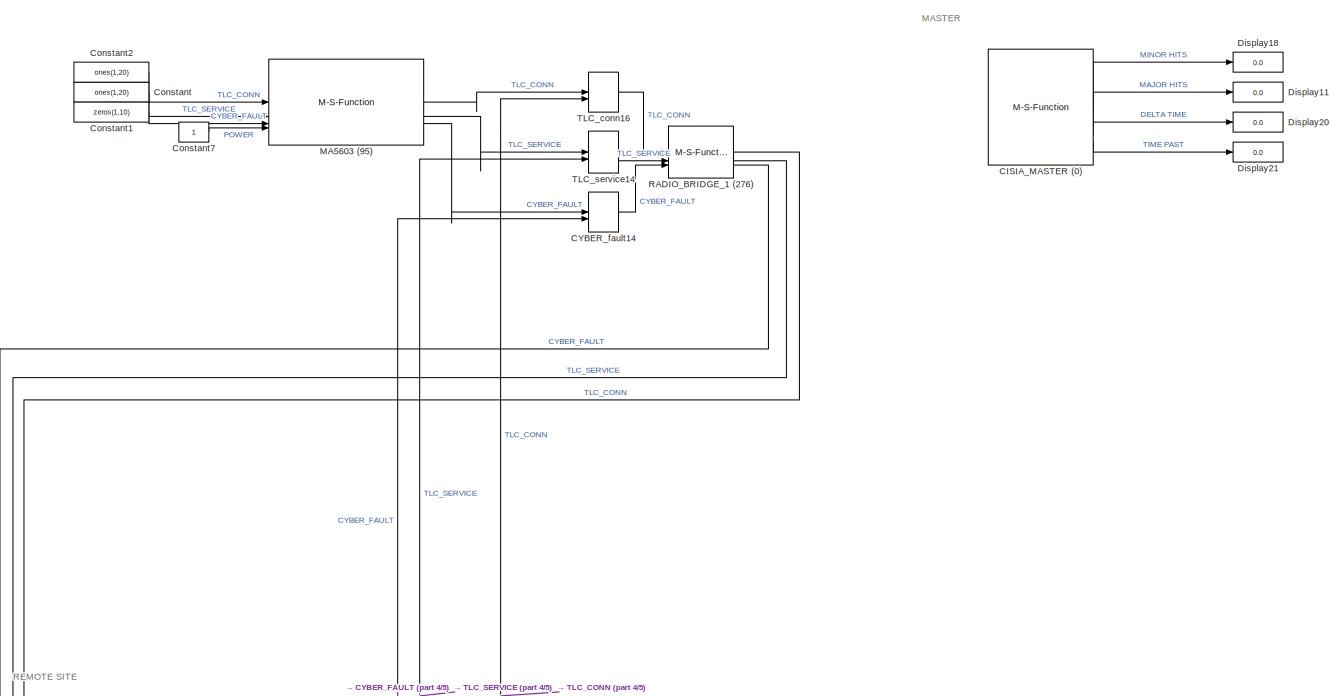
[diagram: root canvas - part 1/5, top center region]
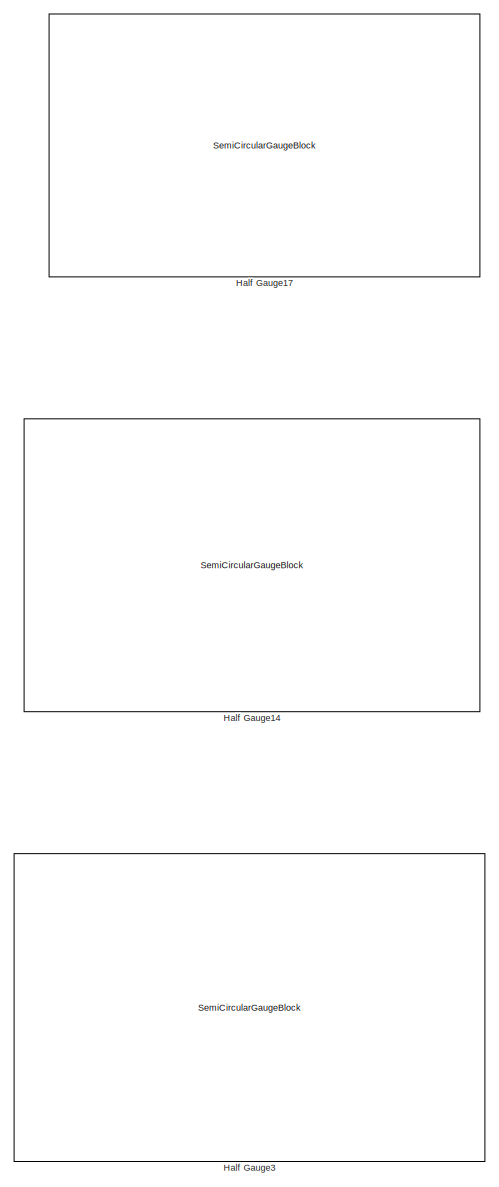
[diagram: root canvas - part 2/5, left side, full height]
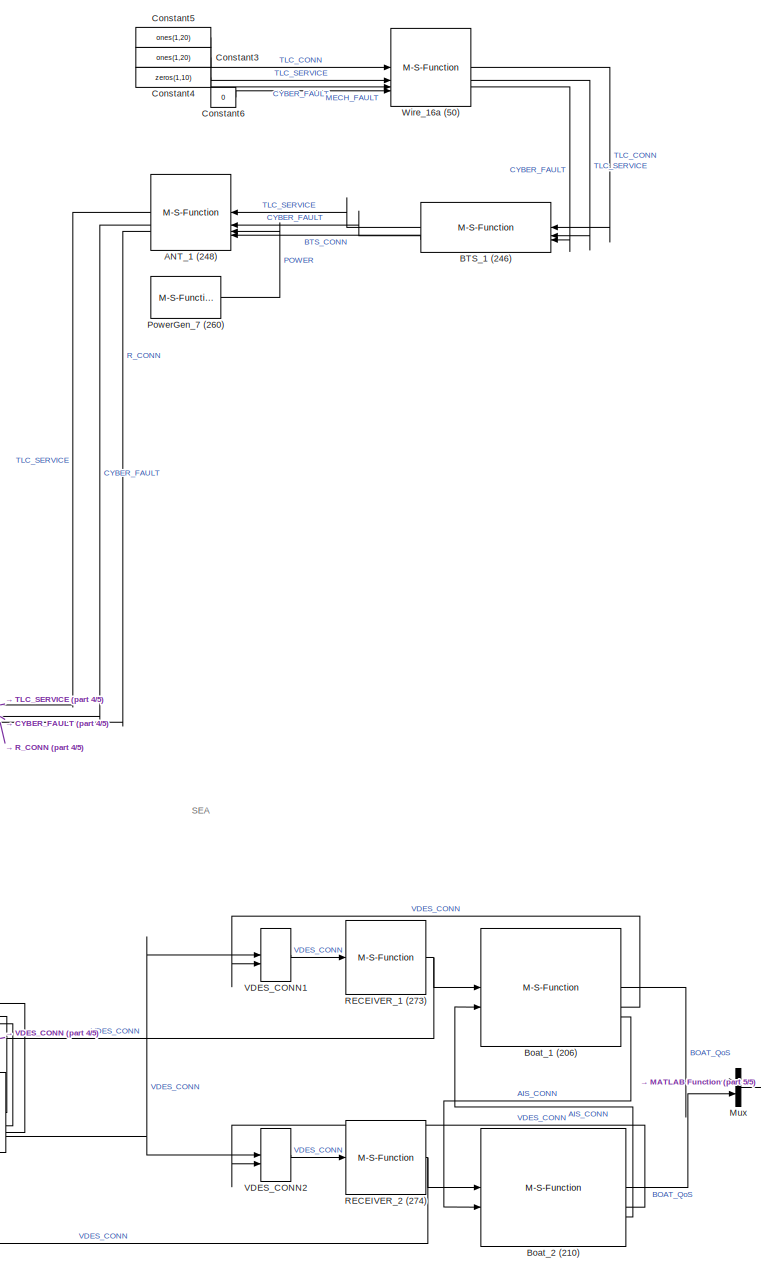
[diagram: root canvas - part 3/5, right side, full height]
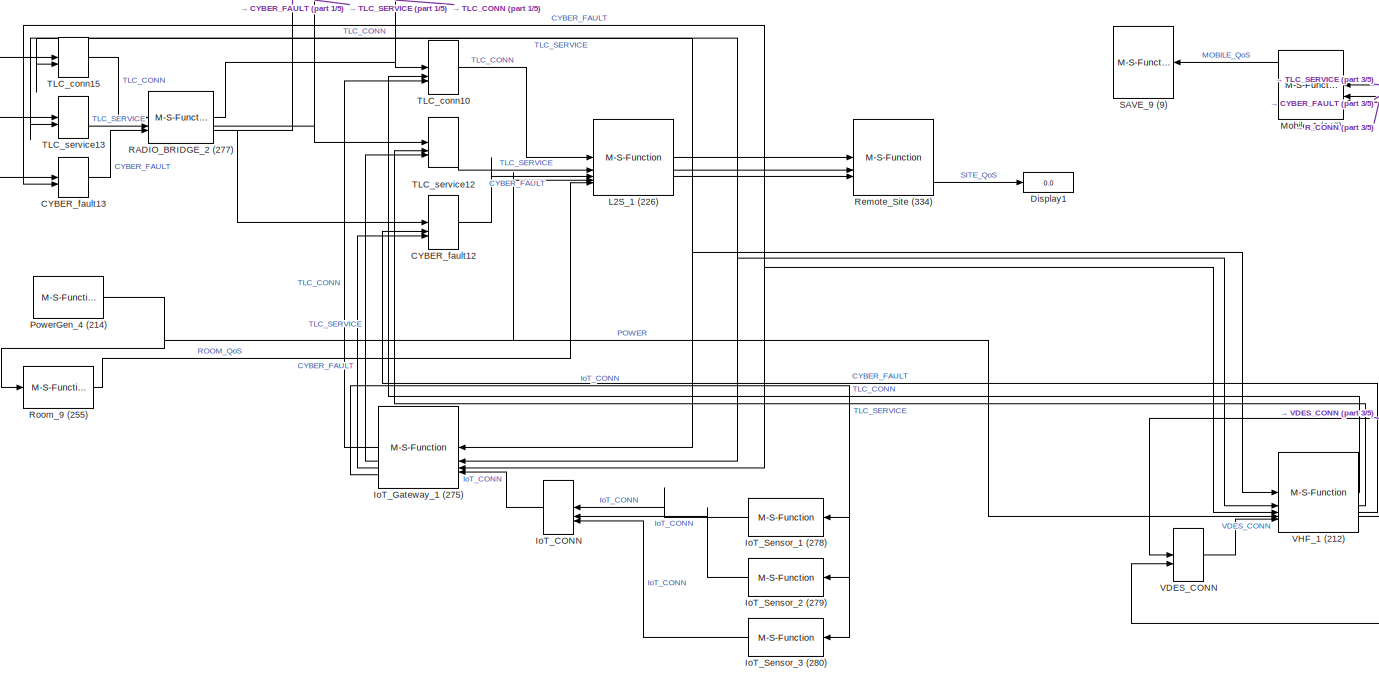
[diagram: root canvas - part 4/5, bottom center region]
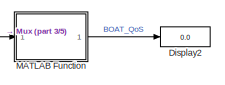
[diagram: root canvas - part 5/5, bottom right region]
MODEL slx_679a81065abf
KIND model
CONFIG AbsTol = auto
CONFIG EnableMultiTasking = off
CONFIG FixedStep = auto
CONFIG MaxStep = auto
CONFIG MinStep = auto
CONFIG RelTol = 1e-3
CONFIG SampleTimeConstraint = Unconstrained
CONFIG SolverName = VariableStepAuto
CONFIG StartTime = 0.0
CONFIG StopTime = 2
BLOCK [M-S-Function] ANT_1 (248)
  FunctionName = cisia_msfun
  NameLocation = top
  Parameters = Parameter1, Parameter2, Parameter3, resources, Parameter10, codeupdate, step_received, step_computed, dynamic_computed, step_sended, id_entity, id_project, id_type, name_type, color
BLOCK [M-S-Function] BTS_1 (246)
  FunctionName = cisia_msfun
  NameLocation = top
  Parameters = Parameter1, Parameter2, Parameter3, resources, Parameter10, codeupdate, step_received, step_computed, dynamic_computed, step_sended, id_entity, id_project, id_type, name_type, color
BLOCK [M-S-Function] Boat_1 (206)
  FunctionName = cisia_msfun
  Parameters = Parameter1, Parameter2, Parameter3, resources, Parameter10, codeupdate, step_received, step_computed, dynamic_computed, step_sended, id_entity, id_project, id_type, name_type, color
BLOCK [M-S-Function] Boat_2 (210)
  FunctionName = cisia_msfun
  Parameters = Parameter1, Parameter2, Parameter3, resources, Parameter10, codeupdate, step_received, step_computed, dynamic_computed, step_sended, id_entity, id_project, id_type, name_type, color
BLOCK [M-S-Function] CISIA_MASTER (0)
  FunctionName = cisia_msfun
  Parameters = Parameter1, Parameter2, Parameter3, resources, Parameter4, Parameter5, Parameter6, Parameter7, Parameter8, Parameter9,Parameter11,Parameter12
BLOCK [MinMax] CYBER_fault12
  Function = max
  Inputs = 3
BLOCK [MinMax] CYBER_fault13
  Function = max
  Inputs = 2
BLOCK [MinMax] CYBER_fault14
  Function = max
  Inputs = 2
BLOCK [Constant] Constant
  Value = ones(1,20)
BLOCK [Constant] Constant1
  Value = zeros(1,10)
BLOCK [Constant] Constant2
  Value = ones(1,20)
BLOCK [Constant] Constant3
  Value = ones(1,20)
BLOCK [Constant] Constant4
  Value = zeros(1,10)
BLOCK [Constant] Constant5
  Value = ones(1,20)
BLOCK [Constant] Constant6
  Value = 0
BLOCK [Constant] Constant7
BLOCK [Display] Display1
  Decimation = 1
BLOCK [Display] Display11
  Decimation = 1
BLOCK [Display] Display18
  Decimation = 1
BLOCK [Display] Display2
  Decimation = 1
BLOCK [Display] Display20
  Decimation = 1
BLOCK [Display] Display21
  Decimation = 1
BLOCK [SemiCircularGaugeBlock] Half Gauge14
  ScaleMax = 1
BLOCK [SemiCircularGaugeBlock] Half Gauge17
  ScaleMax = 1
BLOCK [SemiCircularGaugeBlock] Half Gauge3
  ScaleMax = 1
BLOCK [MinMax] IoT_CONN
  Function = max
  Inputs = 3
  NameLocation = top
BLOCK [M-S-Function] IoT_Gateway_1 (275)
  FunctionName = cisia_msfun
  NameLocation = top
  Parameters = Parameter1, Parameter2, Parameter3, resources, Parameter10, codeupdate, step_received, step_computed, dynamic_computed, step_sended, id_entity, id_project, id_type, name_type, color
BLOCK [M-S-Function] IoT_Sensor_1 (278)
  FunctionName = cisia_msfun
  NameLocation = top
  Parameters = Parameter1, Parameter2, Parameter3, resources, Parameter10, codeupdate, step_received, step_computed, dynamic_computed, step_sended, id_entity, id_project, id_type, name_type, color
BLOCK [M-S-Function] IoT_Sensor_2 (279)
  FunctionName = cisia_msfun
  NameLocation = top
  Parameters = Parameter1, Parameter2, Parameter3, resources, Parameter10, codeupdate, step_received, step_computed, dynamic_computed, step_sended, id_entity, id_project, id_type, name_type, color
BLOCK [M-S-Function] IoT_Sensor_3 (280)
  FunctionName = cisia_msfun
  NameLocation = top
  Parameters = Parameter1, Parameter2, Parameter3, resources, Parameter10, codeupdate, step_received, step_computed, dynamic_computed, step_sended, id_entity, id_project, id_type, name_type, color
BLOCK [M-S-Function] L2S_1 (226)
  FunctionName = cisia_msfun
  Parameters = Parameter1, Parameter2, Parameter3, resources, Parameter10, codeupdate, step_received, step_computed, dynamic_computed, step_sended, id_entity, id_project, id_type, name_type, color
BLOCK [M-S-Function] MA5603 (95)
  FunctionName = cisia_msfun
  Parameters = Parameter1, Parameter2, Parameter3, resources, Parameter10, codeupdate, step_received, step_computed, dynamic_computed, step_sended, id_entity, id_project, id_type, name_type, color
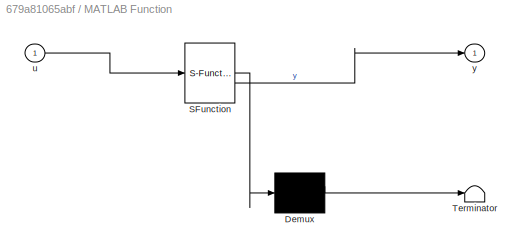
BLOCK [SubSystem] MATLAB Function
  ErrorFcn = Stateflow.Translate.translate
  LibrarySourceBlock = simulink/User-Defined\nFunctions/MATLAB Function
  PermitHierarchicalResolution = ExplicitOnly
  SFBlockType = MATLAB Function
  TreatAsAtomicUnit = on
BLOCK [Demux] MATLAB Function/ Demux 
  Outputs = 1
BLOCK [S-Function] MATLAB Function/ SFunction 
  EnableBusSupport = on
  FunctionName = sf_sfun
  PortCounts = [1 2]
  SFcnIsStateOwnerBlock = off
  SFunctionDeploymentMode = off
  Tag = Stateflow S-Function 2
BLOCK [Terminator] MATLAB Function/ Terminator 
BLOCK [Inport] MATLAB Function/u
BLOCK [Outport] MATLAB Function/y
BLOCK [M-S-Function] Mobile_1 (147)
  FunctionName = cisia_msfun
  NameLocation = top
  Parameters = Parameter1, Parameter2, Parameter3, resources, Parameter10, codeupdate, step_received, step_computed, dynamic_computed, step_sended, id_entity, id_project, id_type, name_type, color
BLOCK [Mux] Mux
  DisplayOption = bar
  Inputs = 2
BLOCK [M-S-Function] PowerGen_4 (214)
  FunctionName = cisia_msfun
  Parameters = Parameter1, Parameter2, Parameter3, resources, Parameter10, codeupdate, step_received, step_computed, dynamic_computed, step_sended, id_entity, id_project, id_type, name_type, color
BLOCK [M-S-Function] PowerGen_7 (260)
  FunctionName = cisia_msfun
  Parameters = Parameter1, Parameter2, Parameter3, resources, Parameter10, codeupdate, step_received, step_computed, dynamic_computed, step_sended, id_entity, id_project, id_type, name_type, color
BLOCK [M-S-Function] RADIO_BRIDGE_1 (276)
  FunctionName = cisia_msfun
  Parameters = Parameter1, Parameter2, Parameter3, resources, Parameter10, codeupdate, step_received, step_computed, dynamic_computed, step_sended, id_entity, id_project, id_type, name_type, color
BLOCK [M-S-Function] RADIO_BRIDGE_2 (277)
  FunctionName = cisia_msfun
  Parameters = Parameter1, Parameter2, Parameter3, resources, Parameter10, codeupdate, step_received, step_computed, dynamic_computed, step_sended, id_entity, id_project, id_type, name_type, color
BLOCK [M-S-Function] RECEIVER_1 (273)
  FunctionName = cisia_msfun
  Parameters = Parameter1, Parameter2, Parameter3, resources, Parameter10, codeupdate, step_received, step_computed, dynamic_computed, step_sended, id_entity, id_project, id_type, name_type, color
BLOCK [M-S-Function] RECEIVER_2 (274)
  FunctionName = cisia_msfun
  Parameters = Parameter1, Parameter2, Parameter3, resources, Parameter10, codeupdate, step_received, step_computed, dynamic_computed, step_sended, id_entity, id_project, id_type, name_type, color
BLOCK [M-S-Function] Remote_Site (334)
  FunctionName = cisia_msfun
  Parameters = Parameter1, Parameter2, Parameter3, resources, Parameter10, codeupdate, step_received, step_computed, dynamic_computed, step_sended, id_entity, id_project, id_type, name_type, color
BLOCK [M-S-Function] Room_9 (255)
  FunctionName = cisia_msfun
  Parameters = Parameter1, Parameter2, Parameter3, resources, Parameter10, codeupdate, step_received, step_computed, dynamic_computed, step_sended, id_entity, id_project, id_type, name_type, color
BLOCK [M-S-Function] SAVE_9 (9)
  FunctionName = cisia_msfun
  NameLocation = top
  Parameters = Parameter1, Parameter2, Parameter3, Parameter4,Parameter5,Parameter6,Parameter7
BLOCK [MinMax] TLC_conn10
  Function = max
  Inputs = 3
BLOCK [MinMax] TLC_conn15
  Function = max
  Inputs = 2
BLOCK [MinMax] TLC_conn16
  Function = max
  Inputs = 2
BLOCK [MinMax] TLC_service12
  Function = max
  Inputs = 3
BLOCK [MinMax] TLC_service13
  Function = max
  Inputs = 2
BLOCK [MinMax] TLC_service14
  Function = max
  Inputs = 2
BLOCK [MinMax] VDES_CONN
  Function = max
  Inputs = 2
BLOCK [MinMax] VDES_CONN1
  Function = max
  Inputs = 2
BLOCK [MinMax] VDES_CONN2
  Function = max
  Inputs = 2
BLOCK [M-S-Function] VHF_1 (212)
  FunctionName = cisia_msfun
  Parameters = Parameter1, Parameter2, Parameter3, resources, Parameter10, codeupdate, step_received, step_computed, dynamic_computed, step_sended, id_entity, id_project, id_type, name_type, color
BLOCK [M-S-Function] Wire_16a (50)
  FunctionName = cisia_msfun
  Parameters = Parameter1, Parameter2, Parameter3, resources, Parameter10, codeupdate, step_received, step_computed, dynamic_computed, step_sended, id_entity, id_project, id_type, name_type, color
ANNOTATION (root): MASTER
ANNOTATION (root): REMOTE SITE
ANNOTATION (root): SEA
LINE ANT_1 (248):1 -> Mobile_1 (147):1
LINE ANT_1 (248):2 -> Mobile_1 (147):2
LINE ANT_1 (248):3 -> Mobile_1 (147):3
LINE BTS_1 (246):1 -> ANT_1 (248):1
LINE BTS_1 (246):2 -> ANT_1 (248):2
LINE BTS_1 (246):3 -> ANT_1 (248):4
LINE Boat_1 (206):1 -> Mux:1
LINE Boat_1 (206):2 -> VDES_CONN1:2
LINE Boat_1 (206):3 -> Boat_2 (210):2
LINE Boat_2 (210):1 -> Mux:2
LINE Boat_2 (210):2 -> VDES_CONN2:2
LINE Boat_2 (210):3 -> Boat_1 (206):2
LINE CISIA_MASTER (0):1 -> Display18:1
LINE CISIA_MASTER (0):2 -> Display11:1
LINE CISIA_MASTER (0):3 -> Display20:1
LINE CISIA_MASTER (0):4 -> Display21:1
LINE CYBER_fault12:1 -> L2S_1 (226):3
LINE CYBER_fault13:1 -> RADIO_BRIDGE_2 (277):3
LINE CYBER_fault14:1 -> RADIO_BRIDGE_1 (276):3
LINE Constant1:1 -> MA5603 (95):3
LINE Constant2:1 -> MA5603 (95):1
LINE Constant3:1 -> Wire_16a (50):2
LINE Constant4:1 -> Wire_16a (50):3
LINE Constant5:1 -> Wire_16a (50):1
LINE Constant6:1 -> Wire_16a (50):4
LINE Constant7:1 -> MA5603 (95):4
LINE Constant:1 -> MA5603 (95):2
LINE IoT_CONN:1 -> IoT_Gateway_1 (275):4
LINE IoT_Gateway_1 (275):1 -> TLC_conn10:3
LINE IoT_Gateway_1 (275):2 -> TLC_service12:3
LINE IoT_Gateway_1 (275):3 -> CYBER_fault12:3
NET IoT_Gateway_1 (275):5 -> IoT_Sensor_1 (278):1, IoT_Sensor_2 (279):1, IoT_Sensor_3 (280):1
LINE IoT_Sensor_1 (278):1 -> IoT_CONN:1
LINE IoT_Sensor_2 (279):1 -> IoT_CONN:2
LINE IoT_Sensor_3 (280):1 -> IoT_CONN:3
NET L2S_1 (226):1 -> IoT_Gateway_1 (275):1, Remote_Site (334):1, TLC_conn15:2, VHF_1 (212):1
NET L2S_1 (226):2 -> IoT_Gateway_1 (275):2, Remote_Site (334):2, TLC_service13:2, VHF_1 (212):2
NET L2S_1 (226):3 -> CYBER_fault13:2, IoT_Gateway_1 (275):3, Remote_Site (334):3, VHF_1 (212):3
LINE MA5603 (95):1 -> TLC_conn16:1
LINE MA5603 (95):2 -> TLC_service14:1
LINE MA5603 (95):3 -> CYBER_fault14:1
LINE MATLAB Function:1 -> Display2:1
LINE Mobile_1 (147):1 -> SAVE_9 (9):1
LINE Mux:1 -> MATLAB Function:1
NET PowerGen_4 (214):1 -> L2S_1 (226):4, Room_9 (255):1, VHF_1 (212):4
LINE PowerGen_7 (260):1 -> ANT_1 (248):3
LINE RADIO_BRIDGE_1 (276):1 -> TLC_conn15:1
LINE RADIO_BRIDGE_1 (276):2 -> TLC_service13:1
LINE RADIO_BRIDGE_1 (276):3 -> CYBER_fault13:1
NET RADIO_BRIDGE_2 (277):1 -> TLC_conn10:1, TLC_conn16:2
NET RADIO_BRIDGE_2 (277):2 -> TLC_service12:1, TLC_service14:2
NET RADIO_BRIDGE_2 (277):3 -> CYBER_fault12:1, CYBER_fault14:2
NET RECEIVER_1 (273):1 -> Boat_1 (206):1, VDES_CONN:1
NET RECEIVER_2 (274):1 -> Boat_2 (210):1, VDES_CONN:2
LINE Remote_Site (334):3 -> Display1:1
LINE Room_9 (255):1 -> L2S_1 (226):5
LINE TLC_conn10:1 -> L2S_1 (226):1
LINE TLC_conn15:1 -> RADIO_BRIDGE_2 (277):1
LINE TLC_conn16:1 -> RADIO_BRIDGE_1 (276):1
LINE TLC_service12:1 -> L2S_1 (226):2
LINE TLC_service13:1 -> RADIO_BRIDGE_2 (277):2
LINE TLC_service14:1 -> RADIO_BRIDGE_1 (276):2
LINE VDES_CONN1:1 -> RECEIVER_1 (273):1
LINE VDES_CONN2:1 -> RECEIVER_2 (274):1
LINE VDES_CONN:1 -> VHF_1 (212):5
LINE VHF_1 (212):1 -> TLC_conn10:2
LINE VHF_1 (212):2 -> TLC_service12:2
LINE VHF_1 (212):3 -> CYBER_fault12:2
NET VHF_1 (212):4 -> VDES_CONN1:1, VDES_CONN2:1
LINE Wire_16a (50):1 -> BTS_1 (246):1
LINE Wire_16a (50):2 -> BTS_1 (246):2
LINE Wire_16a (50):3 -> BTS_1 (246):3
note: NET lines group one-source signal fan-out (src -> all destinations, sorted); 1:1 wires keep LINE
CHART MATLAB Function states=1 transitions=1
  STATE_LABEL 'eML_blk_kernel()'
  STATE_LABEL 'SCRIPT:\nfunction y = mean(u)\n\ny = mean(u);\n'
CHART  states=0 transitions=0
